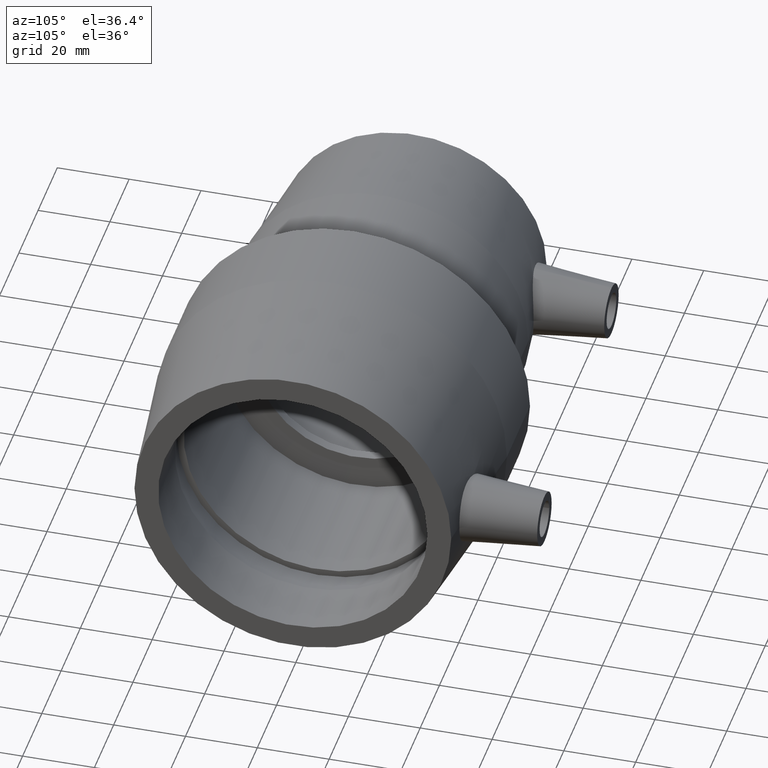
[diagram: clean part render]
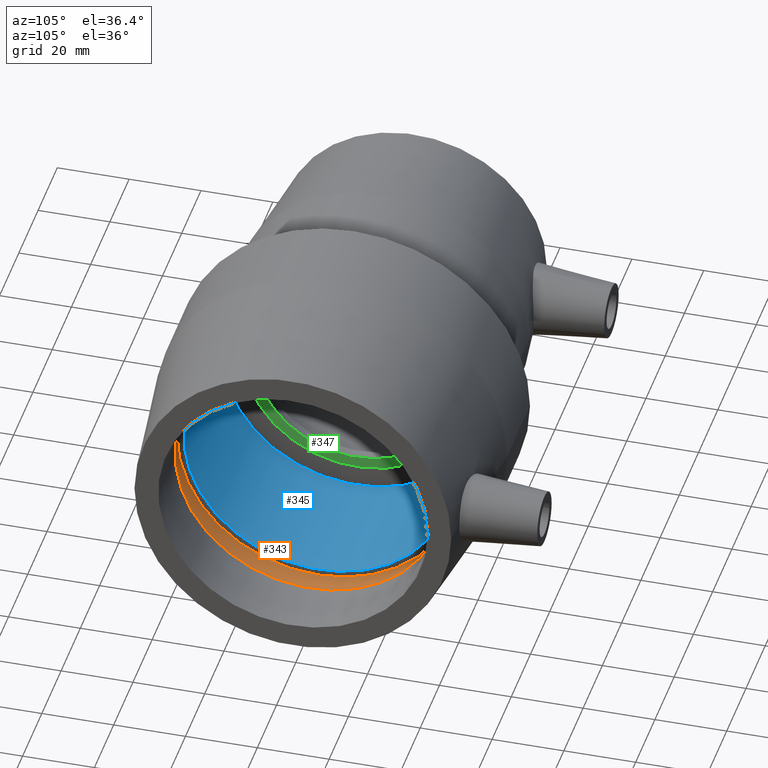
[diagram: same view with three faces highlighted in distinct colors, each labeled with its STEP entity id]
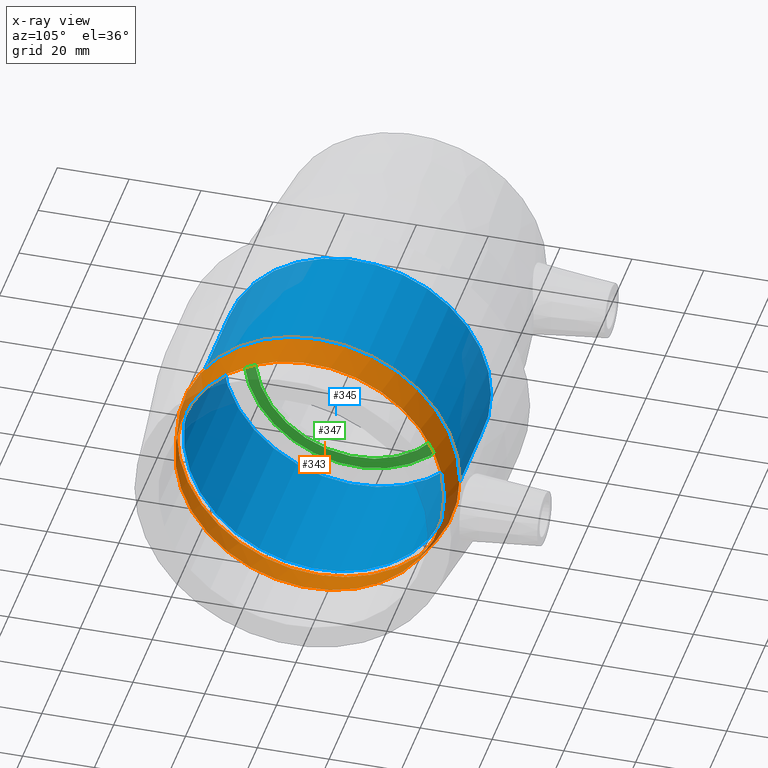
[diagram: x-ray of the same camera — body ghosted, the three highlighted faces saturated]
A machine part, auxiliary view with three faces highlighted in distinct colors.
The next image is the same camera in x-ray (body ghosted, the three faces saturated) — at least one of them is partly hidden behind the body in this view.
Their STEP definitions:

[orange] entity #343 — the highlighted conical surface has half-angle 12 deg.
#21=CONICAL_SURFACE('',#393,38.4352488713481,12.);
#42=FACE_BOUND('',#134,.T.);
#85=FACE_OUTER_BOUND('',#133,.T.);
#133=EDGE_LOOP('',(#286));
#134=EDGE_LOOP('',(#287));
#176=CIRCLE('',#392,37.5);
#177=CIRCLE('',#394,39.3704977426962);
#207=VERTEX_POINT('',#661);
#208=VERTEX_POINT('',#664);
#238=EDGE_CURVE('',#207,#207,#176,.T.);
#239=EDGE_CURVE('',#208,#208,#177,.T.);
#286=ORIENTED_EDGE('',*,*,#239,.F.);
#287=ORIENTED_EDGE('',*,*,#238,.T.);
#343=ADVANCED_FACE('',(#85,#42),#21,.F.);
#392=AXIS2_PLACEMENT_3D('',#662,#488,#489);
#393=AXIS2_PLACEMENT_3D('',#663,#490,#491);
#394=AXIS2_PLACEMENT_3D('',#665,#492,#493);
#488=DIRECTION('center_axis',(1.,1.83697019872103E-16,0.));
#489=DIRECTION('ref_axis',(0.,0.,-1.));
#490=DIRECTION('center_axis',(-1.,-1.83697019872103E-16,0.));
#491=DIRECTION('ref_axis',(-1.72213011695957E-16,1.,0.));
#492=DIRECTION('center_axis',(1.,1.83697019872103E-16,0.));
#493=DIRECTION('ref_axis',(0.,0.,-1.));
#661=CARTESIAN_POINT('',(45.4,37.5,0.));
#662=CARTESIAN_POINT('Origin',(45.4,1.9912756954136E-14,0.));
#663=CARTESIAN_POINT('Origin',(41.,1.91044900666987E-14,0.));
#664=CARTESIAN_POINT('',(36.6,39.3704977426962,0.));
#665=CARTESIAN_POINT('Origin',(36.6,1.82962231792614E-14,0.));

[blue] entity #345 — the highlighted cylindrical surface (bore or boss wall) has radius 37.5 mm, axis along (1, 0, 0).
#44=FACE_BOUND('',#138,.T.);
#63=CYLINDRICAL_SURFACE('',#397,37.5);
#87=FACE_OUTER_BOUND('',#137,.T.);
#137=EDGE_LOOP('',(#290));
#138=EDGE_LOOP('',(#291));
#178=CIRCLE('',#396,37.5);
#179=CIRCLE('',#398,37.5);
#209=VERTEX_POINT('',#667);
#210=VERTEX_POINT('',#670);
#240=EDGE_CURVE('',#209,#209,#178,.T.);
#241=EDGE_CURVE('',#210,#210,#179,.T.);
#290=ORIENTED_EDGE('',*,*,#241,.F.);
#291=ORIENTED_EDGE('',*,*,#240,.T.);
#345=ADVANCED_FACE('',(#87,#44),#63,.F.);
#396=AXIS2_PLACEMENT_3D('',#668,#496,#497);
#397=AXIS2_PLACEMENT_3D('',#669,#498,#499);
#398=AXIS2_PLACEMENT_3D('',#671,#500,#501);
#496=DIRECTION('center_axis',(1.,1.83697019872103E-16,0.));
#497=DIRECTION('ref_axis',(0.,0.,-1.));
#498=DIRECTION('center_axis',(1.,1.83697019872103E-16,0.));
#499=DIRECTION('ref_axis',(-1.72213011695957E-16,1.,0.));
#500=DIRECTION('center_axis',(1.,1.83697019872103E-16,0.));
#501=DIRECTION('ref_axis',(0.,0.,-1.));
#667=CARTESIAN_POINT('',(36.6,37.5,0.));
#668=CARTESIAN_POINT('Origin',(36.6,1.82962231792614E-14,0.));
#669=CARTESIAN_POINT('Origin',(16.8,1.46590221857938E-14,0.));
#670=CARTESIAN_POINT('',(-3.00000000000002,37.5,0.));
#671=CARTESIAN_POINT('Origin',(-3.00000000000001,1.10218211923262E-14,0.));

[green] entity #347 — the highlighted planar face has unit normal (1, 0, 0).
#46=FACE_BOUND('',#142,.T.);
#89=FACE_OUTER_BOUND('',#141,.T.);
#141=EDGE_LOOP('',(#294));
#142=EDGE_LOOP('',(#295));
#180=CIRCLE('',#400,31.5);
#181=CIRCLE('',#402,28.35);
#211=VERTEX_POINT('',#673);
#212=VERTEX_POINT('',#676);
#242=EDGE_CURVE('',#211,#211,#180,.T.);
#243=EDGE_CURVE('',#212,#212,#181,.T.);
#294=ORIENTED_EDGE('',*,*,#242,.T.);
#295=ORIENTED_EDGE('',*,*,#243,.F.);
#321=PLANE('',#401);
#347=ADVANCED_FACE('',(#89,#46),#321,.T.);
#400=AXIS2_PLACEMENT_3D('',#674,#504,#505);
#401=AXIS2_PLACEMENT_3D('',#675,#506,#507);
#402=AXIS2_PLACEMENT_3D('',#677,#508,#509);
#504=DIRECTION('center_axis',(1.,1.83697019872103E-16,0.));
#505=DIRECTION('ref_axis',(0.,0.,-1.));
#506=DIRECTION('center_axis',(1.,1.83697019872103E-16,0.));
#507=DIRECTION('ref_axis',(0.,0.,-1.));
#508=DIRECTION('center_axis',(1.,1.83697019872103E-16,0.));
#509=DIRECTION('ref_axis',(0.,0.,-1.));
#673=CARTESIAN_POINT('',(-3.15,31.5,0.));
#674=CARTESIAN_POINT('Origin',(-3.15,1.09942666393454E-14,0.));
#675=CARTESIAN_POINT('Origin',(-3.15,28.35,0.));
#676=CARTESIAN_POINT('',(-3.15,28.35,0.));
#677=CARTESIAN_POINT('Origin',(-3.15,1.09942666393454E-14,0.));